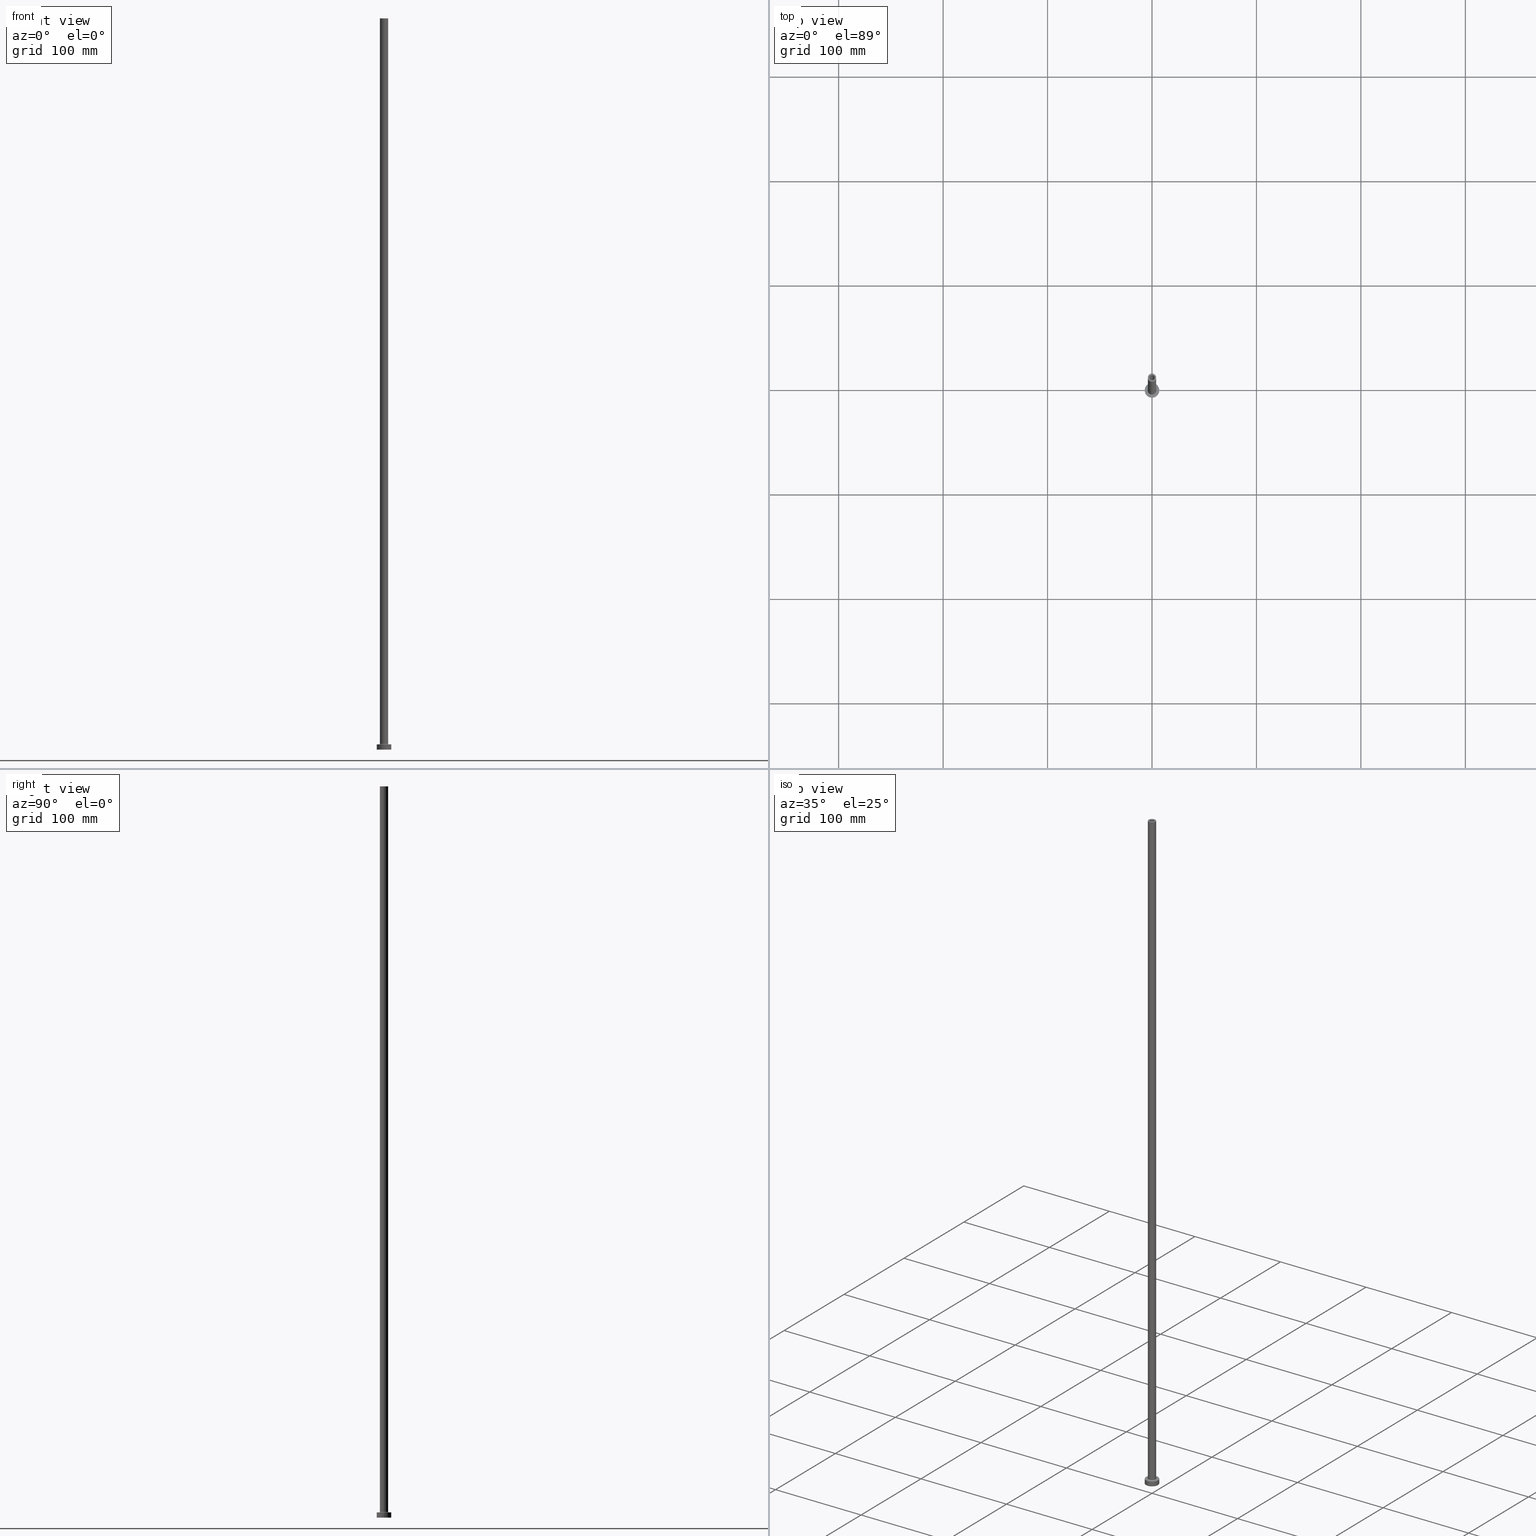
[diagram: canonical four-view strip — front | top / right | iso, engineering-drawing reading convention]
A machine part, canonical four-view strip (front | top / right | iso — engineering-drawing reading convention). The complete STEP part file that produces these views, byte-faithful:
ISO-10303-21;
HEADER;
FILE_DESCRIPTION (( 'STEP AP203' ),
    '1' );
FILE_NAME ('06db.STEP',
    '2023-02-13T16:27:41',
    ( '' ),
    ( '' ),
    'SwSTEP 2.0',
    'SolidWorks 2019',
    '' );
FILE_SCHEMA (( 'CONFIG_CONTROL_DESIGN' ));
ENDSEC;

DATA;
#1 = CARTESIAN_POINT ( 'NONE',  ( 7.000000000000000000, 8.572527594031473190E-16, 5.000000000000000000 ) ) ;
#2 = CARTESIAN_POINT ( 'NONE',  ( -2.600000000000000089, 0.000000000000000000, 700.0000000000000000 ) ) ;
#3 = AXIS2_PLACEMENT_3D ( 'NONE', #300, #445, #123 ) ;
#4 = APPROVAL ( #307, 'NEUR�EN�' ) ;
#5 = ORIENTED_EDGE ( 'NONE', *, *, #360, .F. ) ;
#6 = AXIS2_PLACEMENT_3D ( 'NONE', #249, #109, #349 ) ;
#7 = PERSON_AND_ORGANIZATION ( #106, #41 ) ;
#8 = APPROVAL_DATE_TIME ( #142, #267 ) ;
#9 = ORIENTED_EDGE ( 'NONE', *, *, #314, .F. ) ;
#10 = LINE ( 'NONE', #390, #273 ) ;
#11 = APPLICATION_PROTOCOL_DEFINITION ( 'international standard', 'config_control_design', 1994, #195 ) ;
#12 = CYLINDRICAL_SURFACE ( 'NONE', #419, 2.750000000000000000 ) ;
#13 = ORIENTED_EDGE ( 'NONE', *, *, #377, .T. ) ;
#14 = DIRECTION ( 'NONE',  ( 0.000000000000000000, 0.000000000000000000, 1.000000000000000000 ) ) ;
#15 = EDGE_CURVE ( 'NONE', #376, #230, #383, .T. ) ;
#16 = DIRECTION ( 'NONE',  ( 1.000000000000000000, 0.000000000000000000, 0.000000000000000000 ) ) ;
#17 = AXIS2_PLACEMENT_3D ( 'NONE', #324, #117, #16 ) ;
#18 = DIRECTION ( 'NONE',  ( -0.000000000000000000, -0.000000000000000000, -1.000000000000000000 ) ) ;
#19 = CARTESIAN_POINT ( 'NONE',  ( 0.000000000000000000, 0.000000000000000000, 700.0000000000000000 ) ) ;
#20 = ORIENTED_EDGE ( 'NONE', *, *, #360, .T. ) ;
#21 = CYLINDRICAL_SURFACE ( 'NONE', #3, 2.600000000000000089 ) ;
#22 = VERTEX_POINT ( 'NONE', #401 ) ;
#23 = CIRCLE ( 'NONE', #116, 4.500000000000000888 ) ;
#24 = FACE_OUTER_BOUND ( 'NONE', #63, .T. ) ;
#25 = EDGE_LOOP ( 'NONE', ( #138, #54 ) ) ;
#26 = PERSON_AND_ORGANIZATION ( #106, #41 ) ;
#27 = ADVANCED_FACE ( 'NONE', ( #84, #46 ), #146, .T. ) ;
#28 = EDGE_LOOP ( 'NONE', ( #93, #124 ) ) ;
#29 = ORIENTED_EDGE ( 'NONE', *, *, #280, .F. ) ;
#30 = AXIS2_PLACEMENT_3D ( 'NONE', #447, #270, #409 ) ;
#31 = COORDINATED_UNIVERSAL_TIME_OFFSET ( 1, 0, .AHEAD. ) ;
#32 = VERTEX_POINT ( 'NONE', #257 ) ;
#33 = ORIENTED_EDGE ( 'NONE', *, *, #208, .F. ) ;
#34 = DIRECTION ( 'NONE',  ( -0.000000000000000000, -0.000000000000000000, -1.000000000000000000 ) ) ;
#35 = CARTESIAN_POINT ( 'NONE',  ( -7.000000000000000000, 0.000000000000000000, 5.000000000000000000 ) ) ;
#36 = ORIENTED_EDGE ( 'NONE', *, *, #434, .F. ) ;
#37 = CARTESIAN_POINT ( 'NONE',  ( 0.000000000000000000, 0.000000000000000000, 654.9999999999998863 ) ) ;
#38 = ORIENTED_EDGE ( 'NONE', *, *, #385, .T. ) ;
#39 = EDGE_CURVE ( 'NONE', #32, #303, #366, .T. ) ;
#40 = ORIENTED_EDGE ( 'NONE', *, *, #330, .F. ) ;
#41 = ORGANIZATION ( 'NEUR�EN�', 'NEUR�EN�', '' ) ;
#42 = DIRECTION ( 'NONE',  ( 1.000000000000000000, 0.000000000000000000, 0.000000000000000000 ) ) ;
#43 = APPROVAL_STATUS ( 'not_yet_approved' ) ;
#44 = EDGE_CURVE ( 'NONE', #78, #345, #278, .T. ) ;
#45 = DIRECTION ( 'NONE',  ( 0.000000000000000000, 0.000000000000000000, -1.000000000000000000 ) ) ;
#46 = FACE_OUTER_BOUND ( 'NONE', #207, .T. ) ;
#47 = LOCAL_TIME ( 17, 27, 41.00000000000000000, #220 ) ;
#48 = EDGE_LOOP ( 'NONE', ( #424, #33, #271, #393 ) ) ;
#49 = APPROVAL_ROLE ( '' ) ;
#50 = DIRECTION ( 'NONE',  ( 1.000000000000000000, 0.000000000000000000, -0.000000000000000000 ) ) ;
#51 = ORIENTED_EDGE ( 'NONE', *, *, #330, .T. ) ;
#52 = ADVANCED_FACE ( 'NONE', ( #186 ), #323, .F. ) ;
#53 = ORIENTED_EDGE ( 'NONE', *, *, #245, .F. ) ;
#54 = ORIENTED_EDGE ( 'NONE', *, *, #127, .T. ) ;
#55 = PERSON_AND_ORGANIZATION ( #106, #41 ) ;
#56 = AXIS2_PLACEMENT_3D ( 'NONE', #231, #370, #161 ) ;
#57 = LINE ( 'NONE', #198, #251 ) ;
#58 = CC_DESIGN_PERSON_AND_ORGANIZATION_ASSIGNMENT ( #171, #74, ( #81 ) ) ;
#59 = EDGE_LOOP ( 'NONE', ( #317, #167 ) ) ;
#60 = CARTESIAN_POINT ( 'NONE',  ( 0.000000000000000000, 0.000000000000000000, 5.000000000000000000 ) ) ;
#61 = CARTESIAN_POINT ( 'NONE',  ( 7.000000000000000000, 8.572527594031473190E-16, 0.000000000000000000 ) ) ;
#62 = DIRECTION ( 'NONE',  ( -1.000000000000000000, 0.000000000000000000, 0.000000000000000000 ) ) ;
#63 = EDGE_LOOP ( 'NONE', ( #151, #254, #51, #382 ) ) ;
#64 = AXIS2_PLACEMENT_3D ( 'NONE', #60, #367, #229 ) ;
#65 = CYLINDRICAL_SURFACE ( 'NONE', #66, 2.600000000000000089 ) ;
#66 = AXIS2_PLACEMENT_3D ( 'NONE', #129, #96, #205 ) ;
#67 = ADVANCED_BREP_SHAPE_REPRESENTATION ( '06db', ( #154, #234 ), #159 ) ;
#68 = FACE_OUTER_BOUND ( 'NONE', #325, .T. ) ;
#69 = CIRCLE ( 'NONE', #135, 2.600000000000000089 ) ;
#70 = AXIS2_PLACEMENT_3D ( 'NONE', #158, #268, #407 ) ;
#71 = ORIENTED_EDGE ( 'NONE', *, *, #114, .F. ) ;
#72 = CARTESIAN_POINT ( 'NONE',  ( 0.000000000000000000, 0.000000000000000000, 5.000000000000000000 ) ) ;
#73 = ORIENTED_EDGE ( 'NONE', *, *, #351, .T. ) ;
#74 = PERSON_AND_ORGANIZATION_ROLE ( 'classification_officer' ) ;
#75 = ORIENTED_EDGE ( 'NONE', *, *, #203, .F. ) ;
#76 = VECTOR ( 'NONE', #292, 1000.000000000000000 ) ;
#77 = ADVANCED_FACE ( 'NONE', ( #162 ), #21, .F. ) ;
#78 = VERTEX_POINT ( 'NONE', #61 ) ;
#79 = DIRECTION ( 'NONE',  ( 0.000000000000000000, 0.000000000000000000, 1.000000000000000000 ) ) ;
#80 = DIRECTION ( 'NONE',  ( 1.000000000000000000, 0.000000000000000000, 0.000000000000000000 ) ) ;
#81 = SECURITY_CLASSIFICATION ( '', '', #243 ) ;
#82 = CARTESIAN_POINT ( 'NONE',  ( 4.000000000000000000, 4.898587196589412829E-16, 5.499999999999949374 ) ) ;
#83 = ADVANCED_FACE ( 'NONE', ( #232, #372 ), #340, .T. ) ;
#84 = FACE_BOUND ( 'NONE', #388, .T. ) ;
#85 = ORIENTED_EDGE ( 'NONE', *, *, #416, .F. ) ;
#86 = LINE ( 'NONE', #258, #163 ) ;
#87 = ORIENTED_EDGE ( 'NONE', *, *, #322, .T. ) ;
#88 = CC_DESIGN_DATE_AND_TIME_ASSIGNMENT ( #209, #305, ( #118 ) ) ;
#89 = CARTESIAN_POINT ( 'NONE',  ( 2.600000000000000089, 3.184081677783118191E-16, 700.0000000000000000 ) ) ;
#90 = AXIS2_PLACEMENT_3D ( 'NONE', #92, #326, #368 ) ;
#91 = CYLINDRICAL_SURFACE ( 'NONE', #56, 7.000000000000000000 ) ;
#92 = CARTESIAN_POINT ( 'NONE',  ( -4.500000000000000888, 5.510910596163089556E-16, 5.499999999999949374 ) ) ;
#93 = ORIENTED_EDGE ( 'NONE', *, *, #280, .T. ) ;
#94 = CIRCLE ( 'NONE', #30, 7.000000000000000000 ) ;
#95 = ADVANCED_FACE ( 'NONE', ( #242 ), #65, .F. ) ;
#96 = DIRECTION ( 'NONE',  ( 0.000000000000000000, 0.000000000000000000, -1.000000000000000000 ) ) ;
#97 = DIRECTION ( 'NONE',  ( 0.000000000000000000, 0.000000000000000000, -1.000000000000000000 ) ) ;
#98 = DIRECTION ( 'NONE',  ( 1.000000000000000000, 0.000000000000000000, 0.000000000000000000 ) ) ;
#99 = PRODUCT_DEFINITION_FORMATION_WITH_SPECIFIED_SOURCE ( 'LIBOVOLN�', '', #150, .NOT_KNOWN. ) ;
#100 = DIRECTION ( 'NONE',  ( 1.000000000000000000, 0.000000000000000000, -0.000000000000000000 ) ) ;
#101 = ORIENTED_EDGE ( 'NONE', *, *, #39, .T. ) ;
#102 = APPROVAL_ROLE ( '' ) ;
#103 = EDGE_CURVE ( 'NONE', #302, #303, #165, .T. ) ;
#104 = DATE_AND_TIME ( #310, #334 ) ;
#105 = VERTEX_POINT ( 'NONE', #35 ) ;
#106 = PERSON ( 'NEUR�EN�', 'NEUR�EN�', 'NEUR�EN�', ('NEUR�EN�'), ('NEUR�EN�'), ('NEUR�EN�') ) ;
#108 = AXIS2_PLACEMENT_3D ( 'NONE', #216, #14, #80 ) ;
#107 = CARTESIAN_POINT ( 'NONE',  ( 0.000000000000000000, 0.000000000000000000, 654.9999999999998863 ) ) ;
#109 = DIRECTION ( 'NONE',  ( 0.000000000000000000, 0.000000000000000000, 1.000000000000000000 ) ) ;
#110 = CIRCLE ( 'NONE', #297, 2.750000000000000000 ) ;
#111 = CARTESIAN_POINT ( 'NONE',  ( -4.000000000000000000, 0.000000000000000000, 700.0000000000000000 ) ) ;
#112 = LINE ( 'NONE', #132, #266 ) ;
#113 = CALENDAR_DATE ( 2023, 13, 2 ) ;
#114 = EDGE_CURVE ( 'NONE', #230, #348, #333, .T. ) ;
#115 = AXIS2_PLACEMENT_3D ( 'NONE', #37, #421, #100 ) ;
#116 = AXIS2_PLACEMENT_3D ( 'NONE', #316, #283, #320 ) ;
#117 = DIRECTION ( 'NONE',  ( -0.000000000000000000, -0.000000000000000000, -1.000000000000000000 ) ) ;
#118 = PRODUCT_DEFINITION ( 'NEZN�M�', '', #99, #174 ) ;
#119 = APPROVAL_DATE_TIME ( #263, #4 ) ;
#120 = CARTESIAN_POINT ( 'NONE',  ( 4.000000000000000000, 4.898587196589412829E-16, 700.0000000000000000 ) ) ;
#121 = DIRECTION ( 'NONE',  ( 0.000000000000000000, 0.000000000000000000, 1.000000000000000000 ) ) ;
#122 = AXIS2_PLACEMENT_3D ( 'NONE', #387, #354, #306 ) ;
#123 = DIRECTION ( 'NONE',  ( -1.000000000000000000, 0.000000000000000000, 0.000000000000000000 ) ) ;
#124 = ORIENTED_EDGE ( 'NONE', *, *, #252, .T. ) ;
#125 = DIRECTION ( 'NONE',  ( 0.000000000000000000, 0.000000000000000000, 1.000000000000000000 ) ) ;
#126 = FACE_OUTER_BOUND ( 'NONE', #457, .T. ) ;
#127 = EDGE_CURVE ( 'NONE', #449, #105, #429, .T. ) ;
#128 = ORIENTED_EDGE ( 'NONE', *, *, #314, .T. ) ;
#129 = CARTESIAN_POINT ( 'NONE',  ( 0.000000000000000000, 0.000000000000000000, 700.0000000000000000 ) ) ;
#130 = VERTEX_POINT ( 'NONE', #380 ) ;
#131 = ADVANCED_FACE ( 'NONE', ( #173 ), #352, .F. ) ;
#132 = CARTESIAN_POINT ( 'NONE',  ( -2.750000000000000000, 0.000000000000000000, 662.7781745930519719 ) ) ;
#133 = DIRECTION ( 'NONE',  ( 0.000000000000000000, -1.000000000000000000, 0.000000000000000000 ) ) ;
#134 = FACE_BOUND ( 'NONE', #442, .T. ) ;
#135 = AXIS2_PLACEMENT_3D ( 'NONE', #107, #275, #417 ) ;
#136 = LOCAL_TIME ( 17, 27, 41.00000000000000000, #431 ) ;
#137 = VERTEX_POINT ( 'NONE', #428 ) ;
#138 = ORIENTED_EDGE ( 'NONE', *, *, #365, .T. ) ;
#139 = DIRECTION ( 'NONE',  ( 0.000000000000000000, 0.000000000000000000, 1.000000000000000000 ) ) ;
#140 = APPROVAL_ROLE ( '' ) ;
#141 = FACE_OUTER_BOUND ( 'NONE', #389, .T. ) ;
#142 = DATE_AND_TIME ( #178, #136 ) ;
#143 = DIRECTION ( 'NONE',  ( 0.000000000000000000, 0.000000000000000000, 1.000000000000000000 ) ) ;
#144 = CARTESIAN_POINT ( 'NONE',  ( 0.000000000000000000, 0.000000000000000000, 0.000000000000000000 ) ) ;
#145 = PERSON_AND_ORGANIZATION_ROLE ( 'design_owner' ) ;
#146 = PLANE ( 'NONE',  #350 ) ;
#147 = CC_DESIGN_PERSON_AND_ORGANIZATION_ASSIGNMENT ( #26, #155, ( #99 ) ) ;
#148 = PERSON_AND_ORGANIZATION ( #106, #41 ) ;
#149 = CARTESIAN_POINT ( 'NONE',  ( 0.000000000000000000, 0.000000000000000000, 654.9999999999998863 ) ) ;
#150 = PRODUCT ( '06db', '06db', '', ( #228 ) ) ;
#151 = ORIENTED_EDGE ( 'NONE', *, *, #272, .F. ) ;
#152 = LOCAL_TIME ( 17, 27, 41.00000000000000000, #438 ) ;
#153 = EDGE_CURVE ( 'NONE', #303, #32, #69, .T. ) ;
#154 = MANIFOLD_SOLID_BREP ( 'Odebrat vysunut�m4', #175 ) ;
#155 = PERSON_AND_ORGANIZATION_ROLE ( 'creator' ) ;
#156 = DIRECTION ( 'NONE',  ( -0.000000000000000000, -0.000000000000000000, -1.000000000000000000 ) ) ;
#157 = AXIS2_PLACEMENT_3D ( 'NONE', #72, #418, #98 ) ;
#158 = CARTESIAN_POINT ( 'NONE',  ( 0.000000000000000000, 0.000000000000000000, 700.0000000000000000 ) ) ;
#159 =( GEOMETRIC_REPRESENTATION_CONTEXT ( 3 ) GLOBAL_UNCERTAINTY_ASSIGNED_CONTEXT ( ( #239 ) ) GLOBAL_UNIT_ASSIGNED_CONTEXT ( ( #391, #288, #215 ) ) REPRESENTATION_CONTEXT ( 'NONE', 'WORKASPACE' ) );
#160 = ADVANCED_FACE ( 'NONE', ( #68 ), #346, .T. ) ;
#161 = DIRECTION ( 'NONE',  ( -1.000000000000000000, 0.000000000000000000, 0.000000000000000000 ) ) ;
#162 = FACE_OUTER_BOUND ( 'NONE', #341, .T. ) ;
#163 = VECTOR ( 'NONE', #45, 1000.000000000000000 ) ;
#164 = ADVANCED_FACE ( 'NONE', ( #134, #425 ), #166, .F. ) ;
#165 = LINE ( 'NONE', #237, #217 ) ;
#166 = PLANE ( 'NONE',  #115 ) ;
#167 = ORIENTED_EDGE ( 'NONE', *, *, #44, .F. ) ;
#168 = DIRECTION ( 'NONE',  ( -1.000000000000000000, 0.000000000000000000, 0.000000000000000000 ) ) ;
#169 = CARTESIAN_POINT ( 'NONE',  ( 0.000000000000000000, 0.000000000000000000, 5.000000000000000000 ) ) ;
#170 = AXIS2_PLACEMENT_3D ( 'NONE', #448, #405, #62 ) ;
#171 = PERSON_AND_ORGANIZATION ( #106, #41 ) ;
#172 = EDGE_LOOP ( 'NONE', ( #339, #85 ) ) ;
#173 = FACE_OUTER_BOUND ( 'NONE', #356, .T. ) ;
#174 = DESIGN_CONTEXT ( 'detailed design', #204, 'design' ) ;
#175 = CLOSED_SHELL ( 'NONE', ( #95, #52, #131, #298, #373, #160, #83, #213, #347, #27, #459, #235, #164, #77 ) ) ;
#176 = DIRECTION ( 'NONE',  ( 1.000000000000000000, 0.000000000000000000, 0.000000000000000000 ) ) ;
#177 = APPROVAL ( #400, 'NEUR�EN�' ) ;
#178 = CALENDAR_DATE ( 2023, 13, 2 ) ;
#179 = VERTEX_POINT ( 'NONE', #358 ) ;
#180 = DIRECTION ( 'NONE',  ( -1.000000000000000000, 0.000000000000000000, 0.000000000000000000 ) ) ;
#181 = DIRECTION ( 'NONE',  ( 0.000000000000000000, 0.000000000000000000, 1.000000000000000000 ) ) ;
#182 = ORIENTED_EDGE ( 'NONE', *, *, #434, .T. ) ;
#183 = PLANE ( 'NONE',  #453 ) ;
#184 = DIRECTION ( 'NONE',  ( 1.000000000000000000, 0.000000000000000000, 0.000000000000000000 ) ) ;
#185 = ORIENTED_EDGE ( 'NONE', *, *, #187, .F. ) ;
#186 = FACE_OUTER_BOUND ( 'NONE', #236, .T. ) ;
#187 = EDGE_CURVE ( 'NONE', #446, #137, #374, .T. ) ;
#188 = PERSON_AND_ORGANIZATION_ROLE ( 'creator' ) ;
#189 = AXIS2_PLACEMENT_3D ( 'NONE', #240, #34, #168 ) ;
#190 = AXIS2_PLACEMENT_3D ( 'NONE', #212, #143, #176 ) ;
#191 = DIRECTION ( 'NONE',  ( 0.000000000000000000, 0.000000000000000000, 1.000000000000000000 ) ) ;
#192 = DIRECTION ( 'NONE',  ( -1.000000000000000000, 0.000000000000000000, 0.000000000000000000 ) ) ;
#193 = CYLINDRICAL_SURFACE ( 'NONE', #250, 4.000000000000000000 ) ;
#194 = CARTESIAN_POINT ( 'NONE',  ( 0.000000000000000000, 0.000000000000000000, 700.0000000000000000 ) ) ;
#195 = APPLICATION_CONTEXT ( 'configuration controlled 3d designs of mechanical parts and assemblies' ) ;
#196 = EDGE_CURVE ( 'NONE', #105, #345, #10, .T. ) ;
#197 = PERSON_AND_ORGANIZATION ( #106, #41 ) ;
#198 = CARTESIAN_POINT ( 'NONE',  ( -4.000000000000000000, 0.000000000000000000, 700.0000000000000000 ) ) ;
#199 = CC_DESIGN_SECURITY_CLASSIFICATION ( #81, ( #99 ) ) ;
#200 = ORIENTED_EDGE ( 'NONE', *, *, #208, .T. ) ;
#201 = CYLINDRICAL_SURFACE ( 'NONE', #170, 4.000000000000000000 ) ;
#202 = ORIENTED_EDGE ( 'NONE', *, *, #404, .F. ) ;
#203 = EDGE_CURVE ( 'NONE', #449, #78, #264, .T. ) ;
#204 = APPLICATION_CONTEXT ( 'configuration controlled 3d designs of mechanical parts and assemblies' ) ;
#205 = DIRECTION ( 'NONE',  ( -1.000000000000000000, 0.000000000000000000, 0.000000000000000000 ) ) ;
#206 = AXIS2_PLACEMENT_3D ( 'NONE', #144, #289, #436 ) ;
#207 = EDGE_LOOP ( 'NONE', ( #73, #20 ) ) ;
#208 = EDGE_CURVE ( 'NONE', #230, #376, #328, .T. ) ;
#209 = DATE_AND_TIME ( #392, #301 ) ;
#210 = CIRCLE ( 'NONE', #122, 2.600000000000000089 ) ;
#211 = DATE_TIME_ROLE ( 'classification_date' ) ;
#212 = CARTESIAN_POINT ( 'NONE',  ( 0.000000000000000000, 0.000000000000000000, 5.499999999999949374 ) ) ;
#213 = ADVANCED_FACE ( 'NONE', ( #355, #361 ), #183, .F. ) ;
#214 = DIRECTION ( 'NONE',  ( -0.000000000000000000, -0.000000000000000000, -1.000000000000000000 ) ) ;
#215 =( NAMED_UNIT ( * ) SI_UNIT ( $, .STERADIAN. ) SOLID_ANGLE_UNIT ( ) );
#216 = CARTESIAN_POINT ( 'NONE',  ( 0.000000000000000000, 0.000000000000000000, 5.499999999999949374 ) ) ;
#217 = VECTOR ( 'NONE', #378, 1000.000000000000000 ) ;
#218 = DIRECTION ( 'NONE',  ( 1.000000000000000000, 0.000000000000000000, -0.000000000000000000 ) ) ;
#219 = CARTESIAN_POINT ( 'NONE',  ( -2.600000000000000089, 0.000000000000000000, 700.0000000000000000 ) ) ;
#220 = COORDINATED_UNIVERSAL_TIME_OFFSET ( 1, 0, .AHEAD. ) ;
#221 = DIRECTION ( 'NONE',  ( 0.000000000000000000, 0.000000000000000000, 1.000000000000000000 ) ) ;
#222 = APPROVAL_PERSON_ORGANIZATION ( #276, #4, #102 ) ;
#223 = CALENDAR_DATE ( 2023, 13, 2 ) ;
#224 = DIRECTION ( 'NONE',  ( 1.000000000000000000, 0.000000000000000000, 0.000000000000000000 ) ) ;
#225 = CARTESIAN_POINT ( 'NONE',  ( 2.600000000000000089, 3.184081677783118191E-16, 654.9999999999998863 ) ) ;
#226 = AXIS2_PLACEMENT_3D ( 'NONE', #296, #331, #192 ) ;
#227 = AXIS2_PLACEMENT_3D ( 'NONE', #444, #121, #335 ) ;
#228 = MECHANICAL_CONTEXT ( 'NONE', #195, 'mechanical' ) ;
#229 = DIRECTION ( 'NONE',  ( 1.000000000000000000, 0.000000000000000000, 0.000000000000000000 ) ) ;
#230 = VERTEX_POINT ( 'NONE', #82 ) ;
#231 = CARTESIAN_POINT ( 'NONE',  ( 0.000000000000000000, 0.000000000000000000, 5.000000000000000000 ) ) ;
#232 = FACE_BOUND ( 'NONE', #28, .T. ) ;
#233 = CARTESIAN_POINT ( 'NONE',  ( -7.000000000000000000, 0.000000000000000000, 0.000000000000000000 ) ) ;
#234 = AXIS2_PLACEMENT_3D ( 'NONE', #262, #396, #321 ) ;
#235 = ADVANCED_FACE ( 'NONE', ( #141 ), #12, .F. ) ;
#236 = EDGE_LOOP ( 'NONE', ( #87, #363, #456, #313 ) ) ;
#237 = CARTESIAN_POINT ( 'NONE',  ( 2.600000000000000089, 3.184081677783118191E-16, 700.0000000000000000 ) ) ;
#238 = ORIENTED_EDGE ( 'NONE', *, *, #187, .T. ) ;
#239 = UNCERTAINTY_MEASURE_WITH_UNIT (LENGTH_MEASURE( 1.000000000000000082E-05 ), #391, 'distance_accuracy_value', 'NONE');
#240 = CARTESIAN_POINT ( 'NONE',  ( 0.000000000000000000, 0.000000000000000000, 5.000000000000000000 ) ) ;
#241 = APPROVAL_PERSON_ORGANIZATION ( #148, #177, #49 ) ;
#242 = FACE_OUTER_BOUND ( 'NONE', #414, .T. ) ;
#243 = SECURITY_CLASSIFICATION_LEVEL ( 'unclassified' ) ;
#244 = ORIENTED_EDGE ( 'NONE', *, *, #416, .T. ) ;
#245 = EDGE_CURVE ( 'NONE', #22, #137, #86, .T. ) ;
#246 = VERTEX_POINT ( 'NONE', #111 ) ;
#247 = ORIENTED_EDGE ( 'NONE', *, *, #196, .F. ) ;
#248 = DIRECTION ( 'NONE',  ( 1.000000000000000000, 0.000000000000000000, 0.000000000000000000 ) ) ;
#249 = CARTESIAN_POINT ( 'NONE',  ( 0.000000000000000000, 0.000000000000000000, 654.9999999999998863 ) ) ;
#250 = AXIS2_PLACEMENT_3D ( 'NONE', #19, #156, #338 ) ;
#251 = VECTOR ( 'NONE', #18, 1000.000000000000000 ) ;
#252 = EDGE_CURVE ( 'NONE', #130, #348, #23, .T. ) ;
#253 = DIRECTION ( 'NONE',  ( 0.000000000000000000, 0.000000000000000000, 1.000000000000000000 ) ) ;
#254 = ORIENTED_EDGE ( 'NONE', *, *, #351, .F. ) ;
#255 = FACE_OUTER_BOUND ( 'NONE', #48, .T. ) ;
#256 = CARTESIAN_POINT ( 'NONE',  ( -2.750000000000000000, 0.000000000000000000, 654.9999999999998863 ) ) ;
#257 = CARTESIAN_POINT ( 'NONE',  ( -2.600000000000000089, 0.000000000000000000, 654.9999999999998863 ) ) ;
#258 = CARTESIAN_POINT ( 'NONE',  ( 2.750000000000000000, 3.367778697655220519E-16, 662.7781745930519719 ) ) ;
#259 = CIRCLE ( 'NONE', #90, 0.5000000000000004441 ) ;
#260 = DIRECTION ( 'NONE',  ( 0.000000000000000000, 0.000000000000000000, -1.000000000000000000 ) ) ;
#261 = CC_DESIGN_DATE_AND_TIME_ASSIGNMENT ( #104, #211, ( #81 ) ) ;
#262 = CARTESIAN_POINT ( 'NONE',  ( 0.000000000000000000, 0.000000000000000000, 0.000000000000000000 ) ) ;
#263 = DATE_AND_TIME ( #113, #152 ) ;
#264 = LINE ( 'NONE', #435, #76 ) ;
#265 = FACE_OUTER_BOUND ( 'NONE', #398, .T. ) ;
#266 = VECTOR ( 'NONE', #97, 1000.000000000000000 ) ;
#267 = APPROVAL ( #43, 'NEUR�EN�' ) ;
#268 = DIRECTION ( 'NONE',  ( 0.000000000000000000, 0.000000000000000000, 1.000000000000000000 ) ) ;
#269 = ORIENTED_EDGE ( 'NONE', *, *, #365, .F. ) ;
#270 = DIRECTION ( 'NONE',  ( 0.000000000000000000, 0.000000000000000000, 1.000000000000000000 ) ) ;
#271 = ORIENTED_EDGE ( 'NONE', *, *, #114, .T. ) ;
#272 = EDGE_CURVE ( 'NONE', #179, #230, #433, .T. ) ;
#273 = VECTOR ( 'NONE', #214, 1000.000000000000000 ) ;
#274 = CC_DESIGN_APPROVAL ( #4, ( #99 ) ) ;
#275 = DIRECTION ( 'NONE',  ( 0.000000000000000000, 0.000000000000000000, 1.000000000000000000 ) ) ;
#276 = PERSON_AND_ORGANIZATION ( #106, #41 ) ;
#277 = DIRECTION ( 'NONE',  ( 0.000000000000000000, 0.000000000000000000, -1.000000000000000000 ) ) ;
#278 = CIRCLE ( 'NONE', #357, 7.000000000000000000 ) ;
#279 = ORIENTED_EDGE ( 'NONE', *, *, #404, .T. ) ;
#280 = EDGE_CURVE ( 'NONE', #348, #130, #454, .T. ) ;
#281 = CC_DESIGN_APPROVAL ( #177, ( #118 ) ) ;
#282 = CC_DESIGN_PERSON_AND_ORGANIZATION_ASSIGNMENT ( #7, #145, ( #150 ) ) ;
#283 = DIRECTION ( 'NONE',  ( -0.000000000000000000, -0.000000000000000000, -1.000000000000000000 ) ) ;
#284 = CIRCLE ( 'NONE', #312, 2.600000000000000089 ) ;
#285 = SHAPE_DEFINITION_REPRESENTATION ( #422, #67 ) ;
#286 = ORIENTED_EDGE ( 'NONE', *, *, #39, .F. ) ;
#287 = ORIENTED_EDGE ( 'NONE', *, *, #103, .T. ) ;
#288 =( NAMED_UNIT ( * ) PLANE_ANGLE_UNIT ( ) SI_UNIT ( $, .RADIAN. ) );
#289 = DIRECTION ( 'NONE',  ( 0.000000000000000000, 0.000000000000000000, 1.000000000000000000 ) ) ;
#290 = APPLICATION_PROTOCOL_DEFINITION ( 'international standard', 'config_control_design', 1994, #204 ) ;
#291 = CARTESIAN_POINT ( 'NONE',  ( 0.000000000000000000, 0.000000000000000000, 700.0000000000000000 ) ) ;
#292 = DIRECTION ( 'NONE',  ( -0.000000000000000000, -0.000000000000000000, -1.000000000000000000 ) ) ;
#293 = CARTESIAN_POINT ( 'NONE',  ( 0.000000000000000000, 0.000000000000000000, 5.499999999999949374 ) ) ;
#294 = CC_DESIGN_PERSON_AND_ORGANIZATION_ASSIGNMENT ( #55, #188, ( #118 ) ) ;
#295 = ORIENTED_EDGE ( 'NONE', *, *, #196, .T. ) ;
#296 = CARTESIAN_POINT ( 'NONE',  ( 0.000000000000000000, 0.000000000000000000, 662.7781745930519719 ) ) ;
#297 = AXIS2_PLACEMENT_3D ( 'NONE', #369, #125, #332 ) ;
#298 = ADVANCED_FACE ( 'NONE', ( #265 ), #201, .T. ) ;
#299 = CARTESIAN_POINT ( 'NONE',  ( 4.500000000000000888, 0.000000000000000000, 4.999999999999975131 ) ) ;
#300 = CARTESIAN_POINT ( 'NONE',  ( 0.000000000000000000, 0.000000000000000000, 700.0000000000000000 ) ) ;
#301 = LOCAL_TIME ( 17, 27, 41.00000000000000000, #327 ) ;
#302 = VERTEX_POINT ( 'NONE', #89 ) ;
#303 = VERTEX_POINT ( 'NONE', #225 ) ;
#304 = VECTOR ( 'NONE', #443, 1000.000000000000000 ) ;
#305 = DATE_TIME_ROLE ( 'creation_date' ) ;
#306 = DIRECTION ( 'NONE',  ( 1.000000000000000000, 0.000000000000000000, 0.000000000000000000 ) ) ;
#307 = APPROVAL_STATUS ( 'not_yet_approved' ) ;
#308 = CC_DESIGN_PERSON_AND_ORGANIZATION_ASSIGNMENT ( #197, #450, ( #99 ) ) ;
#309 = DIRECTION ( 'NONE',  ( 0.000000000000000000, 0.000000000000000000, 1.000000000000000000 ) ) ;
#310 = CALENDAR_DATE ( 2023, 13, 2 ) ;
#311 = ORIENTED_EDGE ( 'NONE', *, *, #272, .T. ) ;
#312 = AXIS2_PLACEMENT_3D ( 'NONE', #194, #191, #329 ) ;
#313 = ORIENTED_EDGE ( 'NONE', *, *, #451, .F. ) ;
#314 = EDGE_CURVE ( 'NONE', #302, #408, #284, .T. ) ;
#315 = CARTESIAN_POINT ( 'NONE',  ( -2.750000000000000000, 0.000000000000000000, 0.000000000000000000 ) ) ;
#316 = CARTESIAN_POINT ( 'NONE',  ( 0.000000000000000000, 0.000000000000000000, 5.000000000000000000 ) ) ;
#317 = ORIENTED_EDGE ( 'NONE', *, *, #385, .F. ) ;
#318 = AXIS2_PLACEMENT_3D ( 'NONE', #293, #253, #184 ) ;
#319 = ORIENTED_EDGE ( 'NONE', *, *, #153, .T. ) ;
#320 = DIRECTION ( 'NONE',  ( 1.000000000000000000, 0.000000000000000000, 0.000000000000000000 ) ) ;
#321 = DIRECTION ( 'NONE',  ( 1.000000000000000000, 0.000000000000000000, 0.000000000000000000 ) ) ;
#322 = EDGE_CURVE ( 'NONE', #402, #22, #110, .T. ) ;
#323 = CYLINDRICAL_SURFACE ( 'NONE', #226, 2.750000000000000000 ) ;
#324 = CARTESIAN_POINT ( 'NONE',  ( 0.000000000000000000, 0.000000000000000000, 0.000000000000000000 ) ) ;
#325 = EDGE_LOOP ( 'NONE', ( #75, #269, #295, #38 ) ) ;
#326 = DIRECTION ( 'NONE',  ( 1.224646799147353207E-16, 1.000000000000000000, -0.000000000000000000 ) ) ;
#327 = COORDINATED_UNIVERSAL_TIME_OFFSET ( 1, 0, .AHEAD. ) ;
#328 = CIRCLE ( 'NONE', #190, 4.000000000000000000 ) ;
#329 = DIRECTION ( 'NONE',  ( 1.000000000000000000, 0.000000000000000000, 0.000000000000000000 ) ) ;
#330 = EDGE_CURVE ( 'NONE', #246, #376, #57, .T. ) ;
#331 = DIRECTION ( 'NONE',  ( 0.000000000000000000, 0.000000000000000000, -1.000000000000000000 ) ) ;
#332 = DIRECTION ( 'NONE',  ( 1.000000000000000000, 0.000000000000000000, 0.000000000000000000 ) ) ;
#333 = CIRCLE ( 'NONE', #412, 0.5000000000000004441 ) ;
#334 = LOCAL_TIME ( 17, 27, 41.00000000000000000, #31 ) ;
#335 = DIRECTION ( 'NONE',  ( 1.000000000000000000, 0.000000000000000000, 0.000000000000000000 ) ) ;
#336 = DIRECTION ( 'NONE',  ( 0.000000000000000000, 0.000000000000000000, -1.000000000000000000 ) ) ;
#337 = ORIENTED_EDGE ( 'NONE', *, *, #153, .F. ) ;
#338 = DIRECTION ( 'NONE',  ( -1.000000000000000000, 0.000000000000000000, 0.000000000000000000 ) ) ;
#339 = ORIENTED_EDGE ( 'NONE', *, *, #322, .F. ) ;
#340 = PLANE ( 'NONE',  #439 ) ;
#341 = EDGE_LOOP ( 'NONE', ( #342, #128, #279, #337 ) ) ;
#342 = ORIENTED_EDGE ( 'NONE', *, *, #103, .F. ) ;
#343 = ORIENTED_EDGE ( 'NONE', *, *, #44, .T. ) ;
#344 = CIRCLE ( 'NONE', #6, 2.750000000000000000 ) ;
#345 = VERTEX_POINT ( 'NONE', #233 ) ;
#346 = CYLINDRICAL_SURFACE ( 'NONE', #189, 7.000000000000000000 ) ;
#347 = ADVANCED_FACE ( 'NONE', ( #24 ), #193, .T. ) ;
#348 = VERTEX_POINT ( 'NONE', #299 ) ;
#349 = DIRECTION ( 'NONE',  ( 1.000000000000000000, 0.000000000000000000, 0.000000000000000000 ) ) ;
#350 = AXIS2_PLACEMENT_3D ( 'NONE', #291, #437, #50 ) ;
#351 = EDGE_CURVE ( 'NONE', #246, #179, #458, .T. ) ;
#352 = TOROIDAL_SURFACE ( 'NONE', #386, 4.500000000000000888, 0.5000000000000000000 ) ;
#353 = CIRCLE ( 'NONE', #206, 7.000000000000000000 ) ;
#354 = DIRECTION ( 'NONE',  ( 0.000000000000000000, 0.000000000000000000, 1.000000000000000000 ) ) ;
#355 = FACE_BOUND ( 'NONE', #371, .T. ) ;
#356 = EDGE_LOOP ( 'NONE', ( #420, #13, #29, #71 ) ) ;
#357 = AXIS2_PLACEMENT_3D ( 'NONE', #397, #221, #362 ) ;
#358 = CARTESIAN_POINT ( 'NONE',  ( 4.000000000000000000, 4.898587196589412829E-16, 700.0000000000000000 ) ) ;
#359 = CIRCLE ( 'NONE', #70, 4.000000000000000000 ) ;
#360 = EDGE_CURVE ( 'NONE', #179, #246, #359, .T. ) ;
#361 = FACE_OUTER_BOUND ( 'NONE', #59, .T. ) ;
#362 = DIRECTION ( 'NONE',  ( 1.000000000000000000, 0.000000000000000000, 0.000000000000000000 ) ) ;
#363 = ORIENTED_EDGE ( 'NONE', *, *, #245, .T. ) ;
#364 = APPROVAL_DATE_TIME ( #403, #177 ) ;
#365 = EDGE_CURVE ( 'NONE', #105, #449, #94, .T. ) ;
#366 = CIRCLE ( 'NONE', #430, 2.600000000000000089 ) ;
#367 = DIRECTION ( 'NONE',  ( -0.000000000000000000, -0.000000000000000000, -1.000000000000000000 ) ) ;
#368 = DIRECTION ( 'NONE',  ( -1.000000000000000000, 1.224646799147351482E-16, 0.000000000000000000 ) ) ;
#369 = CARTESIAN_POINT ( 'NONE',  ( 0.000000000000000000, 0.000000000000000000, 654.9999999999998863 ) ) ;
#370 = DIRECTION ( 'NONE',  ( -0.000000000000000000, -0.000000000000000000, -1.000000000000000000 ) ) ;
#371 = EDGE_LOOP ( 'NONE', ( #185, #381 ) ) ;
#372 = FACE_OUTER_BOUND ( 'NONE', #25, .T. ) ;
#373 = ADVANCED_FACE ( 'NONE', ( #126 ), #91, .T. ) ;
#374 = CIRCLE ( 'NONE', #17, 2.750000000000000000 ) ;
#375 = TOROIDAL_SURFACE ( 'NONE', #318, 4.500000000000000888, 0.5000000000000000000 ) ;
#376 = VERTEX_POINT ( 'NONE', #411 ) ;
#377 = EDGE_CURVE ( 'NONE', #376, #130, #259, .T. ) ;
#378 = DIRECTION ( 'NONE',  ( 0.000000000000000000, 0.000000000000000000, -1.000000000000000000 ) ) ;
#379 = AXIS2_PLACEMENT_3D ( 'NONE', #460, #426, #42 ) ;
#380 = CARTESIAN_POINT ( 'NONE',  ( -4.500000000000000888, 5.510910596163088569E-16, 4.999999999999975131 ) ) ;
#381 = ORIENTED_EDGE ( 'NONE', *, *, #441, .F. ) ;
#382 = ORIENTED_EDGE ( 'NONE', *, *, #15, .T. ) ;
#383 = CIRCLE ( 'NONE', #108, 4.000000000000000000 ) ;
#384 = PERSON_AND_ORGANIZATION ( #106, #41 ) ;
#385 = EDGE_CURVE ( 'NONE', #345, #78, #353, .T. ) ;
#386 = AXIS2_PLACEMENT_3D ( 'NONE', #461, #139, #248 ) ;
#387 = CARTESIAN_POINT ( 'NONE',  ( 0.000000000000000000, 0.000000000000000000, 700.0000000000000000 ) ) ;
#388 = EDGE_LOOP ( 'NONE', ( #36, #9 ) ) ;
#389 = EDGE_LOOP ( 'NONE', ( #53, #244, #415, #238 ) ) ;
#390 = CARTESIAN_POINT ( 'NONE',  ( -7.000000000000000000, 0.000000000000000000, 5.000000000000000000 ) ) ;
#391 =( LENGTH_UNIT ( ) NAMED_UNIT ( * ) SI_UNIT ( .MILLI., .METRE. ) );
#392 = CALENDAR_DATE ( 2023, 13, 2 ) ;
#393 = ORIENTED_EDGE ( 'NONE', *, *, #252, .F. ) ;
#394 = CARTESIAN_POINT ( 'NONE',  ( 0.000000000000000000, 0.000000000000000000, 0.000000000000000000 ) ) ;
#395 = LINE ( 'NONE', #219, #406 ) ;
#396 = DIRECTION ( 'NONE',  ( 0.000000000000000000, 0.000000000000000000, 1.000000000000000000 ) ) ;
#397 = CARTESIAN_POINT ( 'NONE',  ( 0.000000000000000000, 0.000000000000000000, 0.000000000000000000 ) ) ;
#398 = EDGE_LOOP ( 'NONE', ( #5, #311, #200, #40 ) ) ;
#399 = CC_DESIGN_APPROVAL ( #267, ( #81 ) ) ;
#400 = APPROVAL_STATUS ( 'not_yet_approved' ) ;
#401 = CARTESIAN_POINT ( 'NONE',  ( 2.750000000000000000, 3.367778697655220519E-16, 654.9999999999998863 ) ) ;
#402 = VERTEX_POINT ( 'NONE', #256 ) ;
#403 = DATE_AND_TIME ( #223, #47 ) ;
#404 = EDGE_CURVE ( 'NONE', #408, #32, #395, .T. ) ;
#405 = DIRECTION ( 'NONE',  ( -0.000000000000000000, -0.000000000000000000, -1.000000000000000000 ) ) ;
#406 = VECTOR ( 'NONE', #336, 1000.000000000000000 ) ;
#407 = DIRECTION ( 'NONE',  ( 1.000000000000000000, 0.000000000000000000, 0.000000000000000000 ) ) ;
#408 = VERTEX_POINT ( 'NONE', #2 ) ;
#409 = DIRECTION ( 'NONE',  ( 1.000000000000000000, 0.000000000000000000, 0.000000000000000000 ) ) ;
#410 = PRODUCT_RELATED_PRODUCT_CATEGORY ( 'detail', '', ( #150 ) ) ;
#411 = CARTESIAN_POINT ( 'NONE',  ( -4.000000000000000000, 0.000000000000000000, 5.499999999999949374 ) ) ;
#412 = AXIS2_PLACEMENT_3D ( 'NONE', #423, #133, #277 ) ;
#413 = APPROVAL_PERSON_ORGANIZATION ( #384, #267, #140 ) ;
#414 = EDGE_LOOP ( 'NONE', ( #182, #287, #286, #202 ) ) ;
#415 = ORIENTED_EDGE ( 'NONE', *, *, #451, .T. ) ;
#416 = EDGE_CURVE ( 'NONE', #22, #402, #344, .T. ) ;
#417 = DIRECTION ( 'NONE',  ( 1.000000000000000000, 0.000000000000000000, 0.000000000000000000 ) ) ;
#418 = DIRECTION ( 'NONE',  ( 0.000000000000000000, 0.000000000000000000, 1.000000000000000000 ) ) ;
#419 = AXIS2_PLACEMENT_3D ( 'NONE', #440, #260, #180 ) ;
#420 = ORIENTED_EDGE ( 'NONE', *, *, #15, .F. ) ;
#421 = DIRECTION ( 'NONE',  ( 0.000000000000000000, 0.000000000000000000, 1.000000000000000000 ) ) ;
#422 = PRODUCT_DEFINITION_SHAPE ( 'NONE', 'NONE',  #118 ) ;
#423 = CARTESIAN_POINT ( 'NONE',  ( 4.500000000000000888, 0.000000000000000000, 5.499999999999949374 ) ) ;
#424 = ORIENTED_EDGE ( 'NONE', *, *, #377, .F. ) ;
#425 = FACE_OUTER_BOUND ( 'NONE', #172, .T. ) ;
#426 = DIRECTION ( 'NONE',  ( -0.000000000000000000, -0.000000000000000000, -1.000000000000000000 ) ) ;
#427 = ORIENTED_EDGE ( 'NONE', *, *, #203, .T. ) ;
#428 = CARTESIAN_POINT ( 'NONE',  ( 2.750000000000000000, 3.367778697655220519E-16, 0.000000000000000000 ) ) ;
#429 = CIRCLE ( 'NONE', #157, 7.000000000000000000 ) ;
#430 = AXIS2_PLACEMENT_3D ( 'NONE', #149, #181, #224 ) ;
#431 = COORDINATED_UNIVERSAL_TIME_OFFSET ( 1, 0, .AHEAD. ) ;
#432 = ORIENTED_EDGE ( 'NONE', *, *, #127, .F. ) ;
#433 = LINE ( 'NONE', #120, #304 ) ;
#434 = EDGE_CURVE ( 'NONE', #408, #302, #210, .T. ) ;
#435 = CARTESIAN_POINT ( 'NONE',  ( 7.000000000000000000, 8.572527594031473190E-16, 5.000000000000000000 ) ) ;
#436 = DIRECTION ( 'NONE',  ( 1.000000000000000000, 0.000000000000000000, 0.000000000000000000 ) ) ;
#437 = DIRECTION ( 'NONE',  ( 0.000000000000000000, 0.000000000000000000, 1.000000000000000000 ) ) ;
#438 = COORDINATED_UNIVERSAL_TIME_OFFSET ( 1, 0, .AHEAD. ) ;
#439 = AXIS2_PLACEMENT_3D ( 'NONE', #169, #309, #452 ) ;
#440 = CARTESIAN_POINT ( 'NONE',  ( 0.000000000000000000, 0.000000000000000000, 662.7781745930519719 ) ) ;
#441 = EDGE_CURVE ( 'NONE', #137, #446, #455, .T. ) ;
#442 = EDGE_LOOP ( 'NONE', ( #101, #319 ) ) ;
#443 = DIRECTION ( 'NONE',  ( -0.000000000000000000, -0.000000000000000000, -1.000000000000000000 ) ) ;
#444 = CARTESIAN_POINT ( 'NONE',  ( 0.000000000000000000, 0.000000000000000000, 700.0000000000000000 ) ) ;
#445 = DIRECTION ( 'NONE',  ( 0.000000000000000000, 0.000000000000000000, -1.000000000000000000 ) ) ;
#446 = VERTEX_POINT ( 'NONE', #315 ) ;
#447 = CARTESIAN_POINT ( 'NONE',  ( 0.000000000000000000, 0.000000000000000000, 5.000000000000000000 ) ) ;
#448 = CARTESIAN_POINT ( 'NONE',  ( 0.000000000000000000, 0.000000000000000000, 700.0000000000000000 ) ) ;
#449 = VERTEX_POINT ( 'NONE', #1 ) ;
#450 = PERSON_AND_ORGANIZATION_ROLE ( 'design_supplier' ) ;
#451 = EDGE_CURVE ( 'NONE', #402, #446, #112, .T. ) ;
#452 = DIRECTION ( 'NONE',  ( 1.000000000000000000, 0.000000000000000000, -0.000000000000000000 ) ) ;
#453 = AXIS2_PLACEMENT_3D ( 'NONE', #394, #79, #218 ) ;
#454 = CIRCLE ( 'NONE', #64, 4.500000000000000888 ) ;
#455 = CIRCLE ( 'NONE', #379, 2.750000000000000000 ) ;
#456 = ORIENTED_EDGE ( 'NONE', *, *, #441, .T. ) ;
#457 = EDGE_LOOP ( 'NONE', ( #432, #427, #343, #247 ) ) ;
#458 = CIRCLE ( 'NONE', #227, 4.000000000000000000 ) ;
#459 = ADVANCED_FACE ( 'NONE', ( #255 ), #375, .F. ) ;
#460 = CARTESIAN_POINT ( 'NONE',  ( 0.000000000000000000, 0.000000000000000000, 0.000000000000000000 ) ) ;
#461 = CARTESIAN_POINT ( 'NONE',  ( 0.000000000000000000, 0.000000000000000000, 5.499999999999949374 ) ) ;
ENDSEC;
END-ISO-10303-21;
